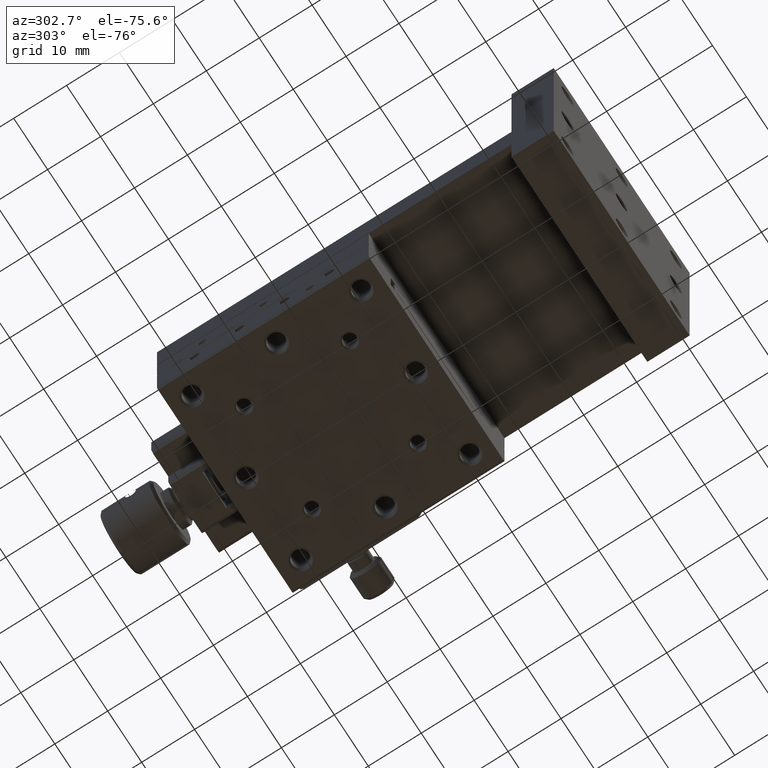
[diagram: clean part render]
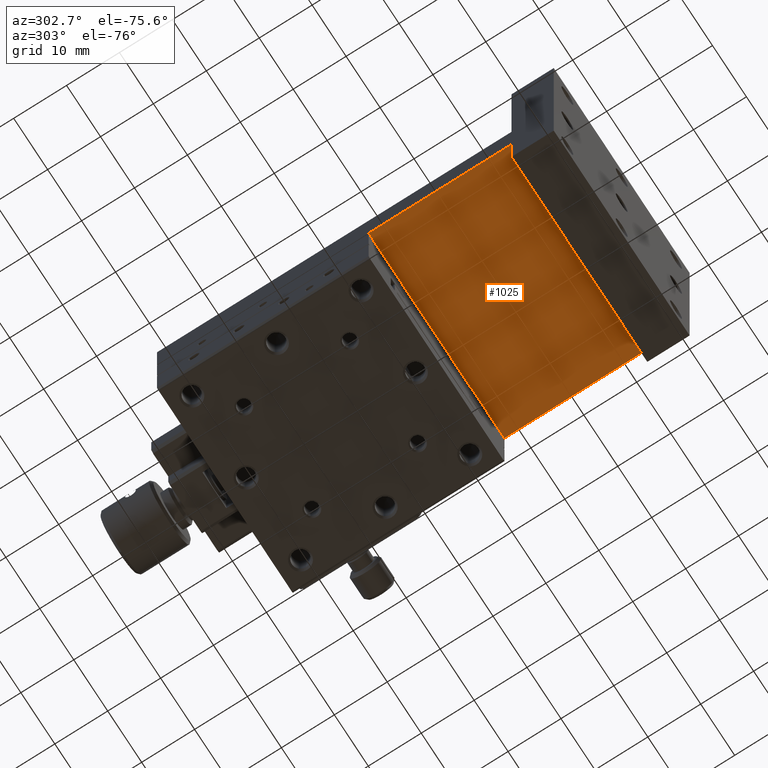
[diagram: same view with one face highlighted and labeled with its STEP entity id]
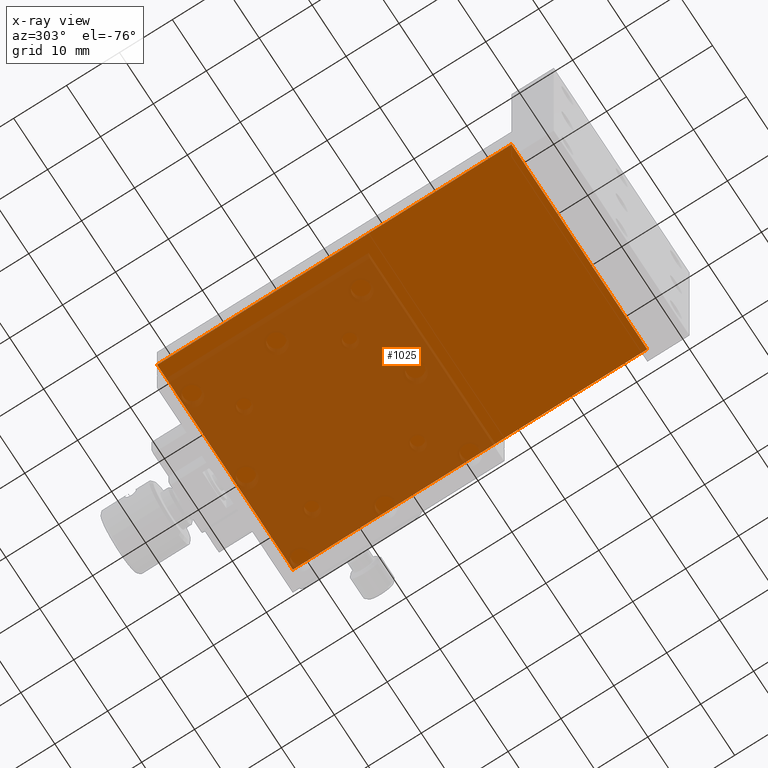
[diagram: x-ray of the same camera — body ghosted, the highlighted face saturated]
A machine part, auxiliary view. The second image highlights one B-rep face of the part: STEP entity #1025.
The next image is the same camera in x-ray: the body ghosted, the highlighted face saturated — about 51% of this face is hidden behind the body in this view.
In plain terms, the highlighted planar face has unit normal (0, 0, 1).
Its self-contained STEP definition (entity closure, byte-faithful):
#127 = VERTEX_POINT ( 'NONE', #7326 ) ;
#1025 = ADVANCED_FACE ( 'NONE', ( #6073 ), #3087, .F. ) ;
#1097 = VERTEX_POINT ( 'NONE', #1983 ) ;
#1132 = DIRECTION ( 'NONE',  ( 0.000000000000000000, -1.000000000000000000, -0.000000000000000000 ) ) ;
#1328 = DIRECTION ( 'NONE',  ( 1.000000000000000000, 0.000000000000000000, -0.000000000000000000 ) ) ;
#1657 = AXIS2_PLACEMENT_3D ( 'NONE', #4778, #5424, #1328 ) ;
#1826 = VERTEX_POINT ( 'NONE', #2575 ) ;
#1858 = EDGE_CURVE ( 'NONE', #1097, #6453, #4402, .T. ) ;
#1983 = CARTESIAN_POINT ( 'NONE',  ( -20.00000000000000000, 8.000000000000000000, 0.000000000000000000 ) ) ;
#2036 = ORIENTED_EDGE ( 'NONE', *, *, #6390, .F. ) ;
#2211 = DIRECTION ( 'NONE',  ( -0.000000000000000000, 1.000000000000000000, 0.000000000000000000 ) ) ;
#2575 = CARTESIAN_POINT ( 'NONE',  ( 20.00000000000000000, 75.00000000000001421, 0.000000000000000000 ) ) ;
#2905 = LINE ( 'NONE', #3437, #5493 ) ;
#3013 = VECTOR ( 'NONE', #2211, 1000.000000000000000 ) ;
#3087 = PLANE ( 'NONE',  #1657 ) ;
#3437 = CARTESIAN_POINT ( 'NONE',  ( -20.00000000000000000, 8.000000000000000000, 0.000000000000000000 ) ) ;
#3695 = LINE ( 'NONE', #3891, #3013 ) ;
#3715 = DIRECTION ( 'NONE',  ( 1.000000000000000000, 0.000000000000000000, -0.000000000000000000 ) ) ;
#3891 = CARTESIAN_POINT ( 'NONE',  ( 20.00000000000000000, 8.000000000000000000, 0.000000000000000000 ) ) ;
#3976 = ORIENTED_EDGE ( 'NONE', *, *, #4066, .F. ) ;
#4001 = VECTOR ( 'NONE', #3715, 1000.000000000000000 ) ;
#4066 = EDGE_CURVE ( 'NONE', #1826, #127, #4835, .T. ) ;
#4164 = VECTOR ( 'NONE', #6059, 1000.000000000000000 ) ;
#4341 = ORIENTED_EDGE ( 'NONE', *, *, #4986, .F. ) ;
#4402 = LINE ( 'NONE', #6083, #4001 ) ;
#4778 = CARTESIAN_POINT ( 'NONE',  ( 20.00000000000000000, 8.000000000000000000, 0.000000000000000000 ) ) ;
#4835 = LINE ( 'NONE', #7294, #4164 ) ;
#4986 = EDGE_CURVE ( 'NONE', #6453, #1826, #3695, .T. ) ;
#5299 = CARTESIAN_POINT ( 'NONE',  ( 20.00000000000000000, 8.000000000000000000, 0.000000000000000000 ) ) ;
#5424 = DIRECTION ( 'NONE',  ( 0.000000000000000000, 0.000000000000000000, 1.000000000000000000 ) ) ;
#5493 = VECTOR ( 'NONE', #1132, 1000.000000000000000 ) ;
#6059 = DIRECTION ( 'NONE',  ( -1.000000000000000000, -0.000000000000000000, 0.000000000000000000 ) ) ;
#6073 = FACE_OUTER_BOUND ( 'NONE', #6164, .T. ) ;
#6083 = CARTESIAN_POINT ( 'NONE',  ( 20.00000000000000000, 8.000000000000000000, 0.000000000000000000 ) ) ;
#6164 = EDGE_LOOP ( 'NONE', ( #3976, #4341, #7540, #2036 ) ) ;
#6390 = EDGE_CURVE ( 'NONE', #127, #1097, #2905, .T. ) ;
#6453 = VERTEX_POINT ( 'NONE', #5299 ) ;
#7294 = CARTESIAN_POINT ( 'NONE',  ( 20.00000000000000000, 75.00000000000001421, 0.000000000000000000 ) ) ;
#7326 = CARTESIAN_POINT ( 'NONE',  ( -20.00000000000000000, 75.00000000000001421, 0.000000000000000000 ) ) ;
#7540 = ORIENTED_EDGE ( 'NONE', *, *, #1858, .F. ) ;